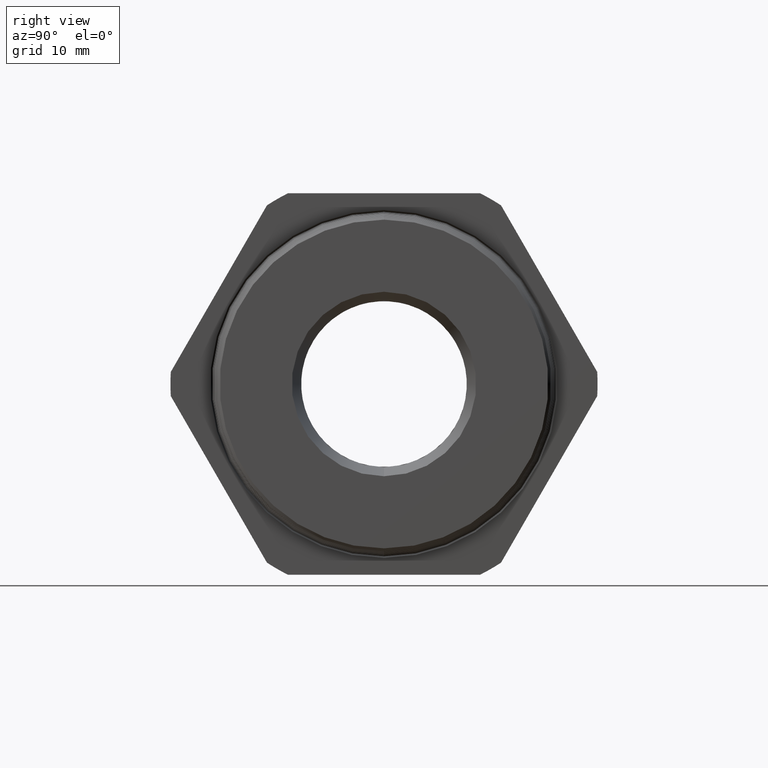
[diagram: clean part render]
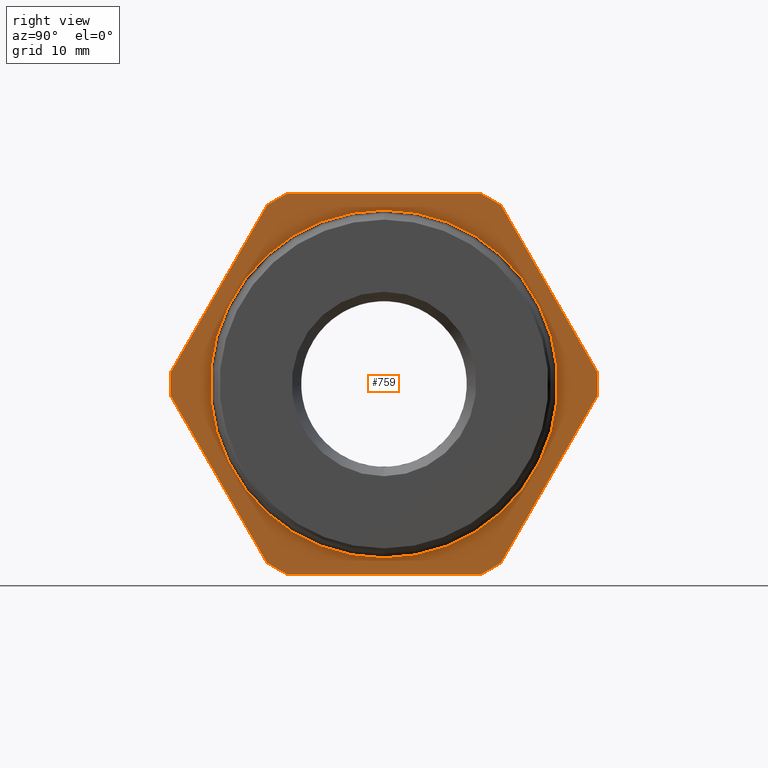
[diagram: same view with one face highlighted and labeled with its STEP entity id]
A machine part, right view. The second image highlights one B-rep face of the part: STEP entity #759.
In plain terms, the highlighted planar face has unit normal (-1, 0, 0).
Its self-contained STEP definition (entity closure, byte-faithful):
#165 = EDGE_CURVE ( 'NONE', #746, #166, #1690, .T. ) ;
#166 = VERTEX_POINT ( 'NONE', #1681 ) ;
#167 = ORIENTED_EDGE ( 'NONE', *, *, #168, .F. ) ;
#168 = EDGE_CURVE ( 'NONE', #169, #166, #1680, .T. ) ;
#169 = VERTEX_POINT ( 'NONE', #1675 ) ;
#170 = ORIENTED_EDGE ( 'NONE', *, *, #171, .T. ) ;
#171 = EDGE_CURVE ( 'NONE', #169, #172, #1674, .T. ) ;
#172 = VERTEX_POINT ( 'NONE', #1670 ) ;
#173 = ORIENTED_EDGE ( 'NONE', *, *, #174, .F. ) ;
#174 = EDGE_CURVE ( 'NONE', #175, #172, #1669, .T. ) ;
#175 = VERTEX_POINT ( 'NONE', #1664 ) ;
#176 = ORIENTED_EDGE ( 'NONE', *, *, #177, .T. ) ;
#177 = EDGE_CURVE ( 'NONE', #175, #178, #1663, .T. ) ;
#178 = VERTEX_POINT ( 'NONE', #1659 ) ;
#179 = ORIENTED_EDGE ( 'NONE', *, *, #219, .F. ) ;
#219 = EDGE_CURVE ( 'NONE', #220, #178, #1769, .T. ) ;
#220 = VERTEX_POINT ( 'NONE', #1764 ) ;
#221 = ORIENTED_EDGE ( 'NONE', *, *, #222, .T. ) ;
#222 = EDGE_CURVE ( 'NONE', #220, #223, #1763, .T. ) ;
#223 = VERTEX_POINT ( 'NONE', #1759 ) ;
#224 = ORIENTED_EDGE ( 'NONE', *, *, #225, .F. ) ;
#225 = EDGE_CURVE ( 'NONE', #736, #223, #1758, .T. ) ;
#226 = EDGE_LOOP ( 'NONE', ( #227, #229 ) ) ;
#227 = ORIENTED_EDGE ( 'NONE', *, *, #228, .F. ) ;
#228 = EDGE_CURVE ( 'NONE', #827, #814, #1817, .T. ) ;
#229 = ORIENTED_EDGE ( 'NONE', *, *, #826, .F. ) ;
#734 = ORIENTED_EDGE ( 'NONE', *, *, #735, .T. ) ;
#735 = EDGE_CURVE ( 'NONE', #736, #737, #2563, .T. ) ;
#736 = VERTEX_POINT ( 'NONE', #2623 ) ;
#737 = VERTEX_POINT ( 'NONE', #2622 ) ;
#738 = ORIENTED_EDGE ( 'NONE', *, *, #739, .F. ) ;
#739 = EDGE_CURVE ( 'NONE', #740, #737, #2620, .T. ) ;
#740 = VERTEX_POINT ( 'NONE', #2615 ) ;
#741 = ORIENTED_EDGE ( 'NONE', *, *, #742, .T. ) ;
#742 = EDGE_CURVE ( 'NONE', #740, #743, #2614, .T. ) ;
#743 = VERTEX_POINT ( 'NONE', #2610 ) ;
#744 = ORIENTED_EDGE ( 'NONE', *, *, #745, .F. ) ;
#745 = EDGE_CURVE ( 'NONE', #746, #743, #2609, .T. ) ;
#746 = VERTEX_POINT ( 'NONE', #2604 ) ;
#747 = ORIENTED_EDGE ( 'NONE', *, *, #165, .T. ) ;
#759 = ADVANCED_FACE ( 'NONE', ( #2648, #2647 ), #2646, .F. ) ;
#760 = EDGE_LOOP ( 'NONE', ( #734, #738, #741, #744, #747, #167, #170, #173, #176, #179, #221, #224 ) ) ;
#814 = VERTEX_POINT ( 'NONE', #2737 ) ;
#826 = EDGE_CURVE ( 'NONE', #814, #827, #2783, .T. ) ;
#827 = VERTEX_POINT ( 'NONE', #2779 ) ;
#1659 = CARTESIAN_POINT ( 'NONE',  ( 0.0000000000000000000, -0.4564646317076495000, 0.9050000000000000300 ) ) ;
#1660 = DIRECTION ( 'NONE',  ( 0.0000000000000000000, -1.000000000000000000, 0.0000000000000000000 ) ) ;
#1661 = VECTOR ( 'NONE', #1660, 39.37007874015748100 ) ;
#1662 = CARTESIAN_POINT ( 'NONE',  ( 0.0000000000000000000, 0.4564646317076495000, 0.9050000000000000300 ) ) ;
#1663 = LINE ( 'NONE', #1662, #1661 ) ;
#1664 = CARTESIAN_POINT ( 'NONE',  ( 0.0000000000000000000, 0.4564646317076493900, 0.9050000000000001400 ) ) ;
#1665 = DIRECTION ( 'NONE',  ( 0.0000000000000000000, 0.0000000000000000000, 1.000000000000000000 ) ) ;
#1666 = DIRECTION ( 'NONE',  ( -1.000000000000000000, 0.0000000000000000000, 0.0000000000000000000 ) ) ;
#1667 = CARTESIAN_POINT ( 'NONE',  ( 0.0000000000000000000, 0.0000000000000000000, 0.0000000000000000000 ) ) ;
#1668 = AXIS2_PLACEMENT_3D ( 'NONE', #1667, #1666, #1665 ) ;
#1669 = CIRCLE ( 'NONE', #1668, 1.013600000000000100 ) ;
#1670 = CARTESIAN_POINT ( 'NONE',  ( 0.0000000000000000000, 0.5555206745710923300, 0.8478099669879322100 ) ) ;
#1671 = DIRECTION ( 'NONE',  ( 0.0000000000000000000, -0.4999999999999998900, 0.8660254037844386000 ) ) ;
#1672 = VECTOR ( 'NONE', #1671, 39.37007874015748900 ) ;
#1673 = CARTESIAN_POINT ( 'NONE',  ( 0.0000000000000000000, 1.011985306278741600, 0.05719003301206784100 ) ) ;
#1674 = LINE ( 'NONE', #1673, #1672 ) ;
#1675 = CARTESIAN_POINT ( 'NONE',  ( 0.0000000000000000000, 1.011985306278741600, 0.05719003301206775800 ) ) ;
#1676 = DIRECTION ( 'NONE',  ( 0.0000000000000000000, 0.0000000000000000000, 1.000000000000000000 ) ) ;
#1677 = DIRECTION ( 'NONE',  ( -1.000000000000000000, 0.0000000000000000000, 0.0000000000000000000 ) ) ;
#1678 = CARTESIAN_POINT ( 'NONE',  ( 0.0000000000000000000, 0.0000000000000000000, 0.0000000000000000000 ) ) ;
#1679 = AXIS2_PLACEMENT_3D ( 'NONE', #1678, #1677, #1676 ) ;
#1680 = CIRCLE ( 'NONE', #1679, 1.013600000000000100 ) ;
#1681 = CARTESIAN_POINT ( 'NONE',  ( 0.0000000000000000000, 1.011985306278741600, -0.05719003301206784100 ) ) ;
#1682 = DIRECTION ( 'NONE',  ( 0.0000000000000000000, 0.4999999999999998900, 0.8660254037844386000 ) ) ;
#1683 = VECTOR ( 'NONE', #1682, 39.37007874015748900 ) ;
#1684 = CARTESIAN_POINT ( 'NONE',  ( 0.0000000000000000000, 0.5555206745710923300, -0.8478099669879322100 ) ) ;
#1690 = LINE ( 'NONE', #1684, #1683 ) ;
#1754 = DIRECTION ( 'NONE',  ( 0.0000000000000000000, 0.0000000000000000000, 1.000000000000000000 ) ) ;
#1755 = DIRECTION ( 'NONE',  ( -1.000000000000000000, 0.0000000000000000000, 0.0000000000000000000 ) ) ;
#1756 = CARTESIAN_POINT ( 'NONE',  ( 0.0000000000000000000, 0.0000000000000000000, 0.0000000000000000000 ) ) ;
#1757 = AXIS2_PLACEMENT_3D ( 'NONE', #1756, #1755, #1754 ) ;
#1758 = CIRCLE ( 'NONE', #1757, 1.013600000000000100 ) ;
#1759 = CARTESIAN_POINT ( 'NONE',  ( 0.0000000000000000000, -1.011985306278742100, 0.05719003301206764700 ) ) ;
#1760 = DIRECTION ( 'NONE',  ( 0.0000000000000000000, -0.4999999999999998900, -0.8660254037844386000 ) ) ;
#1761 = VECTOR ( 'NONE', #1760, 39.37007874015748900 ) ;
#1762 = CARTESIAN_POINT ( 'NONE',  ( 0.0000000000000000000, -0.5555206745710921100, 0.8478099669879322100 ) ) ;
#1763 = LINE ( 'NONE', #1762, #1761 ) ;
#1764 = CARTESIAN_POINT ( 'NONE',  ( 0.0000000000000000000, -0.5555206745710920000, 0.8478099669879323200 ) ) ;
#1765 = DIRECTION ( 'NONE',  ( 0.0000000000000000000, 0.0000000000000000000, 1.000000000000000000 ) ) ;
#1766 = DIRECTION ( 'NONE',  ( -1.000000000000000000, 0.0000000000000000000, 0.0000000000000000000 ) ) ;
#1767 = CARTESIAN_POINT ( 'NONE',  ( 0.0000000000000000000, 0.0000000000000000000, 0.0000000000000000000 ) ) ;
#1768 = AXIS2_PLACEMENT_3D ( 'NONE', #1767, #1766, #1765 ) ;
#1769 = CIRCLE ( 'NONE', #1768, 1.013600000000000100 ) ;
#1813 = DIRECTION ( 'NONE',  ( 0.0000000000000000000, 0.0000000000000000000, 1.000000000000000000 ) ) ;
#1814 = DIRECTION ( 'NONE',  ( 1.000000000000000000, 0.0000000000000000000, 0.0000000000000000000 ) ) ;
#1815 = CARTESIAN_POINT ( 'NONE',  ( 0.0000000000000000000, 0.0000000000000000000, 0.0000000000000000000 ) ) ;
#1816 = AXIS2_PLACEMENT_3D ( 'NONE', #1815, #1814, #1813 ) ;
#1817 = CIRCLE ( 'NONE', #1816, 0.8249999999999998400 ) ;
#2561 = VECTOR ( 'NONE', #2624, 39.37007874015748900 ) ;
#2562 = CARTESIAN_POINT ( 'NONE',  ( 0.0000000000000000000, -1.011985306278741600, -0.05719003301206825000 ) ) ;
#2563 = LINE ( 'NONE', #2562, #2561 ) ;
#2604 = CARTESIAN_POINT ( 'NONE',  ( 0.0000000000000000000, 0.5555206745710923300, -0.8478099669879322100 ) ) ;
#2605 = DIRECTION ( 'NONE',  ( 0.0000000000000000000, 0.0000000000000000000, 1.000000000000000000 ) ) ;
#2606 = DIRECTION ( 'NONE',  ( -1.000000000000000000, 0.0000000000000000000, 0.0000000000000000000 ) ) ;
#2607 = CARTESIAN_POINT ( 'NONE',  ( 0.0000000000000000000, 0.0000000000000000000, 0.0000000000000000000 ) ) ;
#2608 = AXIS2_PLACEMENT_3D ( 'NONE', #2607, #2606, #2605 ) ;
#2609 = CIRCLE ( 'NONE', #2608, 1.013600000000000100 ) ;
#2610 = CARTESIAN_POINT ( 'NONE',  ( 0.0000000000000000000, 0.4564646317076495000, -0.9050000000000000300 ) ) ;
#2611 = DIRECTION ( 'NONE',  ( 0.0000000000000000000, 1.000000000000000000, 0.0000000000000000000 ) ) ;
#2612 = VECTOR ( 'NONE', #2611, 39.37007874015748100 ) ;
#2613 = CARTESIAN_POINT ( 'NONE',  ( 0.0000000000000000000, -0.4564646317076495000, -0.9050000000000000300 ) ) ;
#2614 = LINE ( 'NONE', #2613, #2612 ) ;
#2615 = CARTESIAN_POINT ( 'NONE',  ( 0.0000000000000000000, -0.4564646317076499500, -0.9049999999999998000 ) ) ;
#2616 = DIRECTION ( 'NONE',  ( 0.0000000000000000000, 0.0000000000000000000, 1.000000000000000000 ) ) ;
#2617 = DIRECTION ( 'NONE',  ( -1.000000000000000000, 0.0000000000000000000, 0.0000000000000000000 ) ) ;
#2618 = CARTESIAN_POINT ( 'NONE',  ( 0.0000000000000000000, 0.0000000000000000000, 0.0000000000000000000 ) ) ;
#2619 = AXIS2_PLACEMENT_3D ( 'NONE', #2618, #2617, #2616 ) ;
#2620 = CIRCLE ( 'NONE', #2619, 1.013600000000000100 ) ;
#2622 = CARTESIAN_POINT ( 'NONE',  ( 0.0000000000000000000, -0.5555206745710928900, -0.8478099669879317600 ) ) ;
#2623 = CARTESIAN_POINT ( 'NONE',  ( 0.0000000000000000000, -1.011985306278741800, -0.05719003301206832000 ) ) ;
#2624 = DIRECTION ( 'NONE',  ( 0.0000000000000000000, 0.4999999999999998300, -0.8660254037844386000 ) ) ;
#2642 = DIRECTION ( 'NONE',  ( 0.0000000000000000000, 0.0000000000000000000, 1.000000000000000000 ) ) ;
#2643 = DIRECTION ( 'NONE',  ( -1.000000000000000000, 0.0000000000000000000, 0.0000000000000000000 ) ) ;
#2644 = CARTESIAN_POINT ( 'NONE',  ( 0.0000000000000000000, 1.013600000000000100, 0.0000000000000000000 ) ) ;
#2645 = AXIS2_PLACEMENT_3D ( 'NONE', #2644, #2643, #2642 ) ;
#2646 = PLANE ( 'NONE',  #2645 ) ;
#2647 = FACE_BOUND ( 'NONE', #226, .T. ) ;
#2648 = FACE_OUTER_BOUND ( 'NONE', #760, .T. ) ;
#2721 = CARTESIAN_POINT ( 'NONE',  ( 0.0000000000000000000, 0.0000000000000000000, 0.0000000000000000000 ) ) ;
#2737 = CARTESIAN_POINT ( 'NONE',  ( 0.0000000000000000000, 1.010333609296566100E-016, 0.8249999999999998400 ) ) ;
#2779 = CARTESIAN_POINT ( 'NONE',  ( 0.0000000000000000000, 0.0000000000000000000, -0.8249999999999998400 ) ) ;
#2780 = DIRECTION ( 'NONE',  ( 0.0000000000000000000, 0.0000000000000000000, 1.000000000000000000 ) ) ;
#2781 = DIRECTION ( 'NONE',  ( 1.000000000000000000, 0.0000000000000000000, 0.0000000000000000000 ) ) ;
#2782 = AXIS2_PLACEMENT_3D ( 'NONE', #2721, #2781, #2780 ) ;
#2783 = CIRCLE ( 'NONE', #2782, 0.8249999999999998400 ) ;